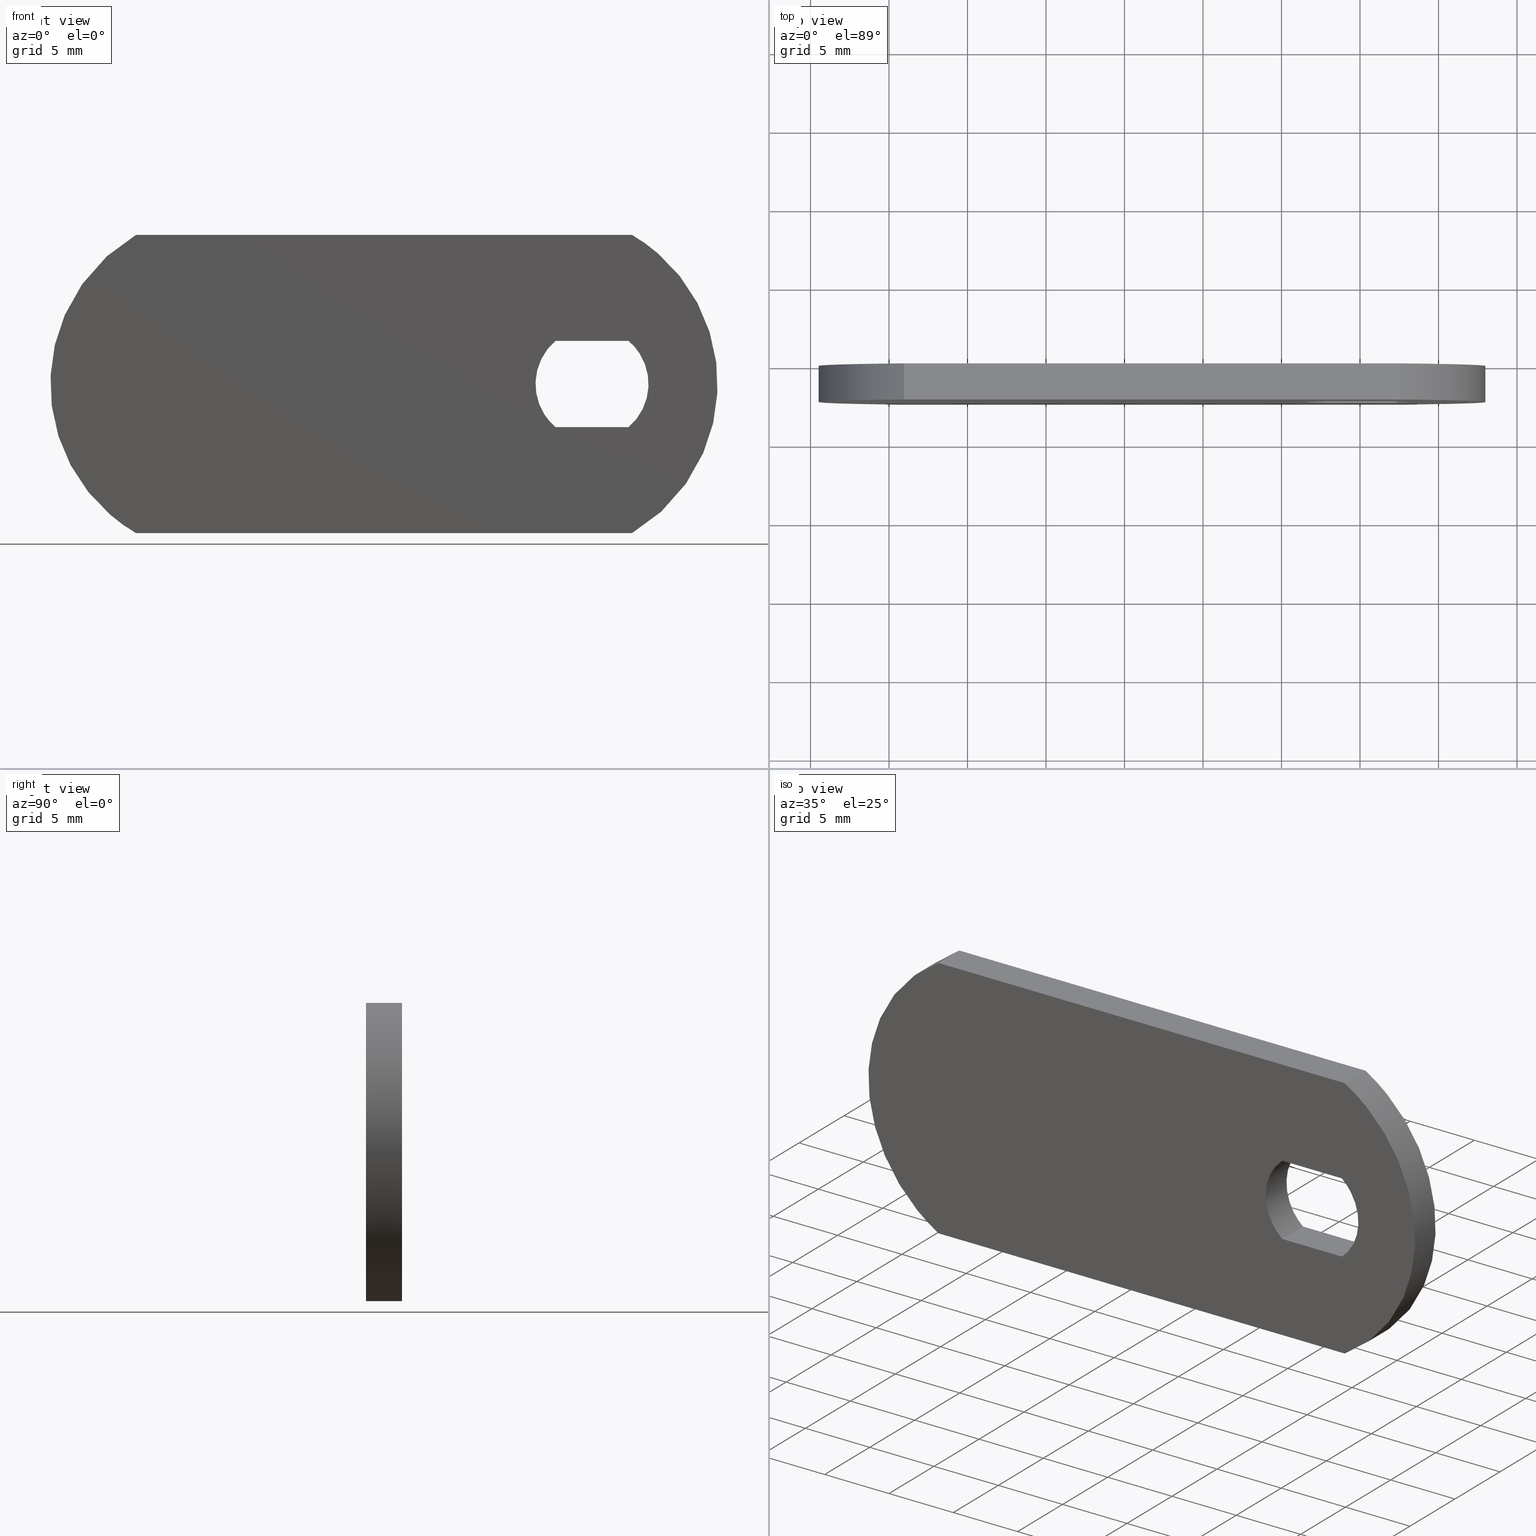
[diagram: canonical four-view strip — front | top / right | iso, engineering-drawing reading convention]
A machine part, canonical four-view strip (front | top / right | iso — engineering-drawing reading convention). The complete STEP part file that produces these views, byte-faithful:
ISO-10303-21;
HEADER;
/****************************************************************
 * Generated by software with PDE/Lib inside                    *
 * PDElib Version 4.4.1-0003, patched  Thursday August 19 11:58 *
 * International Technegroup Inc. (www.iti-oh.com)              *
 ****************************************************************/
FILE_DESCRIPTION((''),'2;1');
FILE_NAME('','2005-07-15T17:38:05',(''),(''),'','CADfix','');
FILE_SCHEMA(('AUTOMOTIVE_DESIGN'));
ENDSEC;
DATA;
#5=APPLICATION_CONTEXT('automotive design');
#6=APPLICATION_PROTOCOL_DEFINITION('Draft International Standard','automotive_design',1998,#5);
#7=PRODUCT_CONTEXT('None',#5,'mechanical');
#8=PRODUCT('cam','','None',(#7));
#9=PRODUCT_RELATED_PRODUCT_CATEGORY('part','description',(#8));
#10=PRODUCT_DEFINITION_FORMATION('None','None',#8);
#11=PRODUCT_DEFINITION_CONTEXT('part definition',#5,'design');
#12=PRODUCT_DEFINITION('None','None',#10,#11);
#18=(NAMED_UNIT(*)PLANE_ANGLE_UNIT()SI_UNIT($,.RADIAN.));
#19=DIMENSIONAL_EXPONENTS(0.0,0.0,0.0,0.0,0.0,0.0,0.0);
#20=PLANE_ANGLE_MEASURE_WITH_UNIT(PLANE_ANGLE_MEASURE(0.017453292500000),#18);
#24=(CONVERSION_BASED_UNIT('DEGREE',#20)NAMED_UNIT(#19)PLANE_ANGLE_UNIT());
#28=(NAMED_UNIT(*)SI_UNIT($,.STERADIAN.)SOLID_ANGLE_UNIT());
#32=(LENGTH_UNIT()NAMED_UNIT(*)SI_UNIT(.MILLI.,.METRE.));
#34=UNCERTAINTY_MEASURE_WITH_UNIT(LENGTH_MEASURE(0.001000000000000),#32,'DISTANCE_ACCURACY_VALUE','');
#36=(GEOMETRIC_REPRESENTATION_CONTEXT(3)GLOBAL_UNCERTAINTY_ASSIGNED_CONTEXT((#34))GLOBAL_UNIT_ASSIGNED_CONTEXT((#24,#28,#32))REPRESENTATION_CONTEXT('None','None'));
#37=AXIS2_PLACEMENT_3D('',#38,#39,#40);
#38=CARTESIAN_POINT('',(0.0,0.0,0.0));
#39=DIRECTION('',(0.0,0.0,1.0));
#40=DIRECTION('',(1.0,0.0,0.0));
#41=ADVANCED_BREP_SHAPE_REPRESENTATION('',(#37,#421),#36);
#42=PRODUCT_DEFINITION_SHAPE('','',#12);
#43=SHAPE_DEFINITION_REPRESENTATION(#42,#41);
#44=CARTESIAN_POINT('',(-36.622874917626753,0.0,10.449049963174311));
#45=CARTESIAN_POINT('',(10.122876057565581,0.0,10.449049963174311));
#46=CARTESIAN_POINT('',(-36.622874917626753,0.0,-10.449050472794029));
#47=CARTESIAN_POINT('',(10.122876057565581,0.0,-10.449050472794029));
#48=B_SPLINE_SURFACE_WITH_KNOTS('',1,1,((#44,#46),(#45,#47)),.UNSPECIFIED.,.F.,.F.,.U.,(2,2),(2,2),(0.0,46.745750975192337),(0.0,20.898100435968342),.UNSPECIFIED.);
#49=CARTESIAN_POINT('',(-29.045268253204700,0.0,9.500000000000000));
#50=VERTEX_POINT('',#49);
#51=CARTESIAN_POINT('',(2.545268253204700,0.0,9.500000000000000));
#52=VERTEX_POINT('',#51);
#53=CARTESIAN_POINT('',(-29.045268253204700,0.0,9.500000000000000));
#54=CARTESIAN_POINT('',(2.545268253204700,0.0,9.500000000000000));
#55=QUASI_UNIFORM_CURVE('',1,(#53,#54),.UNSPECIFIED.,.F.,.U.);
#56=EDGE_CURVE('',#50,#52,#55,.T.);
#57=ORIENTED_EDGE('',*,*,#56,.T.);
#58=CARTESIAN_POINT('',(2.545268253204700,0.0,-9.500000000000000));
#59=VERTEX_POINT('',#58);
#60=CARTESIAN_POINT('',(2.545268253204699,0.0,-9.500000000000005));
#61=CARTESIAN_POINT('',(8.0,0.0,-6.316005180499818));
#62=CARTESIAN_POINT('',(8.0,0.0,0.0));
#63=CARTESIAN_POINT('',(8.0,0.0,6.316005180499816));
#64=CARTESIAN_POINT('',(2.545268253204703,0.0,9.500000000000004));
#72=(BOUNDED_CURVE()B_SPLINE_CURVE(2,(#60,#61,#62,#63,#64),.UNSPECIFIED.,.F.,.U.)B_SPLINE_CURVE_WITH_KNOTS((3,2,3),(0.0,0.500000000000000,1.0),.UNSPECIFIED.)CURVE()GEOMETRIC_REPRESENTATION_ITEM()RATIONAL_B_SPLINE_CURVE((1.0,0.867212573636326,1.0,0.867212573636326,1.0))REPRESENTATION_ITEM(''));
#73=EDGE_CURVE('',#59,#52,#72,.T.);
#74=ORIENTED_EDGE('',*,*,#73,.F.);
#75=CARTESIAN_POINT('',(-29.045268253204700,0.0,-9.500000000000000));
#76=VERTEX_POINT('',#75);
#77=CARTESIAN_POINT('',(2.545268253204700,0.0,-9.500000000000000));
#78=CARTESIAN_POINT('',(-29.045268253204700,0.0,-9.500000000000000));
#79=QUASI_UNIFORM_CURVE('',1,(#77,#78),.UNSPECIFIED.,.F.,.U.);
#80=EDGE_CURVE('',#59,#76,#79,.T.);
#81=ORIENTED_EDGE('',*,*,#80,.T.);
#82=CARTESIAN_POINT('',(-29.045268253204700,0.0,9.500000000000005));
#83=CARTESIAN_POINT('',(-34.500000000000000,0.0,6.316005180499818));
#84=CARTESIAN_POINT('',(-34.500000000000000,0.0,0.0));
#85=CARTESIAN_POINT('',(-34.500000000000000,0.0,-6.316005180499817));
#86=CARTESIAN_POINT('',(-29.045268253204700,0.0,-9.500000000000004));
#94=(BOUNDED_CURVE()B_SPLINE_CURVE(2,(#82,#83,#84,#85,#86),.UNSPECIFIED.,.F.,.U.)B_SPLINE_CURVE_WITH_KNOTS((3,2,3),(0.0,0.500000000000000,1.0),.UNSPECIFIED.)CURVE()GEOMETRIC_REPRESENTATION_ITEM()RATIONAL_B_SPLINE_CURVE((1.0,0.867212573636326,1.0,0.867212573636326,1.0))REPRESENTATION_ITEM(''));
#95=EDGE_CURVE('',#50,#76,#94,.T.);
#96=ORIENTED_EDGE('',*,*,#95,.F.);
#97=EDGE_LOOP('',(#57,#74,#81,#96));
#98=FACE_OUTER_BOUND('',#97,.T.);
#99=CARTESIAN_POINT('',(-2.323252031097790,0.0,2.750000000000000));
#100=VERTEX_POINT('',#99);
#101=CARTESIAN_POINT('',(2.323252031097790,0.0,2.750000000000000));
#102=VERTEX_POINT('',#101);
#103=CARTESIAN_POINT('',(-2.323252031097790,0.0,2.750000000000000));
#104=CARTESIAN_POINT('',(2.323252031097790,0.0,2.750000000000000));
#105=QUASI_UNIFORM_CURVE('',1,(#103,#104),.UNSPECIFIED.,.F.,.U.);
#106=EDGE_CURVE('',#100,#102,#105,.T.);
#107=ORIENTED_EDGE('',*,*,#106,.F.);
#108=CARTESIAN_POINT('',(-2.323252031097790,0.0,-2.750000000000000));
#109=VERTEX_POINT('',#108);
#110=CARTESIAN_POINT('',(-2.323252031097790,0.0,2.749999999999999));
#111=CARTESIAN_POINT('',(-3.600000000000001,0.0,1.671379159290166));
#112=CARTESIAN_POINT('',(-3.600000000000000,0.0,0.0));
#113=CARTESIAN_POINT('',(-3.600000000000001,0.0,-1.671379159290167));
#114=CARTESIAN_POINT('',(-2.323252031097789,0.0,-2.750000000000000));
#122=(BOUNDED_CURVE()B_SPLINE_CURVE(2,(#110,#111,#112,#113,#114),.UNSPECIFIED.,.F.,.U.)B_SPLINE_CURVE_WITH_KNOTS((3,2,3),(0.0,0.500000000000000,1.0),.UNSPECIFIED.)CURVE()GEOMETRIC_REPRESENTATION_ITEM()RATIONAL_B_SPLINE_CURVE((1.0,0.907013722723105,1.0,0.907013722723105,1.0))REPRESENTATION_ITEM(''));
#123=EDGE_CURVE('',#100,#109,#122,.T.);
#124=ORIENTED_EDGE('',*,*,#123,.T.);
#125=CARTESIAN_POINT('',(2.323252031097790,0.0,-2.750000000000000));
#126=VERTEX_POINT('',#125);
#127=CARTESIAN_POINT('',(2.323252031097790,0.0,-2.750000000000000));
#128=CARTESIAN_POINT('',(-2.323252031097790,0.0,-2.750000000000000));
#129=QUASI_UNIFORM_CURVE('',1,(#127,#128),.UNSPECIFIED.,.F.,.U.);
#130=EDGE_CURVE('',#126,#109,#129,.T.);
#131=ORIENTED_EDGE('',*,*,#130,.F.);
#132=CARTESIAN_POINT('',(2.323252031097788,0.0,-2.750000000000000));
#133=CARTESIAN_POINT('',(3.600000000000001,0.0,-1.671379159290167));
#134=CARTESIAN_POINT('',(3.600000000000000,0.0,0.0));
#135=CARTESIAN_POINT('',(3.600000000000001,0.0,1.671379159290165));
#136=CARTESIAN_POINT('',(2.323252031097791,0.0,2.749999999999998));
#144=(BOUNDED_CURVE()B_SPLINE_CURVE(2,(#132,#133,#134,#135,#136),.UNSPECIFIED.,.F.,.U.)B_SPLINE_CURVE_WITH_KNOTS((3,2,3),(0.0,0.500000000000000,1.0),.UNSPECIFIED.)CURVE()GEOMETRIC_REPRESENTATION_ITEM()RATIONAL_B_SPLINE_CURVE((1.0,0.907013722723105,1.0,0.907013722723105,1.0))REPRESENTATION_ITEM(''));
#145=EDGE_CURVE('',#126,#102,#144,.T.);
#146=ORIENTED_EDGE('',*,*,#145,.T.);
#147=EDGE_LOOP('',(#107,#124,#131,#146));
#148=FACE_BOUND('',#147,.T.);
#149=ADVANCED_FACE('',(#98,#148),#48,.T.);
#150=CARTESIAN_POINT('',(-36.622874917626753,-2.300000000000095,10.449049963174311));
#151=CARTESIAN_POINT('',(10.122876057565581,-2.300000000000095,10.449049963174311));
#152=CARTESIAN_POINT('',(-36.622874917626753,-2.300000000000095,-10.449050472794029));
#153=CARTESIAN_POINT('',(10.122876057565581,-2.300000000000095,-10.449050472794029));
#154=B_SPLINE_SURFACE_WITH_KNOTS('',1,1,((#150,#152),(#151,#153)),.UNSPECIFIED.,.F.,.F.,.U.,(2,2),(2,2),(0.0,46.745750975192337),(0.0,20.898100435968342),.UNSPECIFIED.);
#155=CARTESIAN_POINT('',(-29.045268253204700,-2.300000000000080,9.500000000000000));
#156=VERTEX_POINT('',#155);
#157=CARTESIAN_POINT('',(2.545268253204700,-2.300000000000080,9.500000000000000));
#158=VERTEX_POINT('',#157);
#159=CARTESIAN_POINT('',(-29.045268253204700,-2.300000000000080,9.500000000000000));
#160=CARTESIAN_POINT('',(2.545268253204700,-2.300000000000080,9.500000000000000));
#161=QUASI_UNIFORM_CURVE('',1,(#159,#160),.UNSPECIFIED.,.F.,.U.);
#162=EDGE_CURVE('',#156,#158,#161,.T.);
#163=ORIENTED_EDGE('',*,*,#162,.F.);
#164=CARTESIAN_POINT('',(-29.045268253204700,-2.300000000000080,-9.500000000000000));
#165=VERTEX_POINT('',#164);
#166=CARTESIAN_POINT('',(-29.045268253204700,-2.300000000000080,9.500000000000005));
#167=CARTESIAN_POINT('',(-34.500000000000000,-2.300000000000080,6.316005180499818));
#168=CARTESIAN_POINT('',(-34.500000000000000,-2.300000000000080,0.0));
#169=CARTESIAN_POINT('',(-34.500000000000000,-2.300000000000080,-6.316005180499817));
#170=CARTESIAN_POINT('',(-29.045268253204700,-2.300000000000080,-9.500000000000004));
#178=(BOUNDED_CURVE()B_SPLINE_CURVE(2,(#166,#167,#168,#169,#170),.UNSPECIFIED.,.F.,.U.)B_SPLINE_CURVE_WITH_KNOTS((3,2,3),(0.0,0.500000000000000,1.0),.UNSPECIFIED.)CURVE()GEOMETRIC_REPRESENTATION_ITEM()RATIONAL_B_SPLINE_CURVE((1.0,0.867212573636326,1.0,0.867212573636326,1.0))REPRESENTATION_ITEM(''));
#179=EDGE_CURVE('',#156,#165,#178,.T.);
#180=ORIENTED_EDGE('',*,*,#179,.T.);
#181=CARTESIAN_POINT('',(2.545268253204700,-2.300000000000080,-9.500000000000000));
#182=VERTEX_POINT('',#181);
#183=CARTESIAN_POINT('',(2.545268253204700,-2.300000000000080,-9.500000000000000));
#184=CARTESIAN_POINT('',(-29.045268253204700,-2.300000000000080,-9.500000000000000));
#185=QUASI_UNIFORM_CURVE('',1,(#183,#184),.UNSPECIFIED.,.F.,.U.);
#186=EDGE_CURVE('',#182,#165,#185,.T.);
#187=ORIENTED_EDGE('',*,*,#186,.F.);
#188=CARTESIAN_POINT('',(2.545268253204699,-2.300000000000080,-9.500000000000005));
#189=CARTESIAN_POINT('',(8.0,-2.300000000000080,-6.316005180499818));
#190=CARTESIAN_POINT('',(8.0,-2.300000000000080,0.0));
#191=CARTESIAN_POINT('',(8.0,-2.300000000000080,6.316005180499816));
#192=CARTESIAN_POINT('',(2.545268253204703,-2.300000000000080,9.500000000000004));
#200=(BOUNDED_CURVE()B_SPLINE_CURVE(2,(#188,#189,#190,#191,#192),.UNSPECIFIED.,.F.,.U.)B_SPLINE_CURVE_WITH_KNOTS((3,2,3),(0.0,0.500000000000000,1.0),.UNSPECIFIED.)CURVE()GEOMETRIC_REPRESENTATION_ITEM()RATIONAL_B_SPLINE_CURVE((1.0,0.867212573636326,1.0,0.867212573636326,1.0))REPRESENTATION_ITEM(''));
#201=EDGE_CURVE('',#182,#158,#200,.T.);
#202=ORIENTED_EDGE('',*,*,#201,.T.);
#203=EDGE_LOOP('',(#163,#180,#187,#202));
#204=FACE_OUTER_BOUND('',#203,.T.);
#205=CARTESIAN_POINT('',(-2.323252031097790,-2.300000000000080,2.750000000000000));
#206=VERTEX_POINT('',#205);
#207=CARTESIAN_POINT('',(2.323252031097790,-2.300000000000080,2.750000000000000));
#208=VERTEX_POINT('',#207);
#209=CARTESIAN_POINT('',(-2.323252031097790,-2.300000000000080,2.750000000000000));
#210=CARTESIAN_POINT('',(2.323252031097790,-2.300000000000080,2.750000000000000));
#211=QUASI_UNIFORM_CURVE('',1,(#209,#210),.UNSPECIFIED.,.F.,.U.);
#212=EDGE_CURVE('',#206,#208,#211,.T.);
#213=ORIENTED_EDGE('',*,*,#212,.T.);
#214=CARTESIAN_POINT('',(2.323252031097790,-2.300000000000080,-2.750000000000000));
#215=VERTEX_POINT('',#214);
#216=CARTESIAN_POINT('',(2.323252031097788,-2.300000000000080,-2.750000000000000));
#217=CARTESIAN_POINT('',(3.600000000000001,-2.300000000000080,-1.671379159290167));
#218=CARTESIAN_POINT('',(3.600000000000000,-2.300000000000080,0.0));
#219=CARTESIAN_POINT('',(3.600000000000001,-2.300000000000080,1.671379159290165));
#220=CARTESIAN_POINT('',(2.323252031097791,-2.300000000000080,2.749999999999998));
#228=(BOUNDED_CURVE()B_SPLINE_CURVE(2,(#216,#217,#218,#219,#220),.UNSPECIFIED.,.F.,.U.)B_SPLINE_CURVE_WITH_KNOTS((3,2,3),(0.0,0.500000000000000,1.0),.UNSPECIFIED.)CURVE()GEOMETRIC_REPRESENTATION_ITEM()RATIONAL_B_SPLINE_CURVE((1.0,0.907013722723105,1.0,0.907013722723105,1.0))REPRESENTATION_ITEM(''));
#229=EDGE_CURVE('',#215,#208,#228,.T.);
#230=ORIENTED_EDGE('',*,*,#229,.F.);
#231=CARTESIAN_POINT('',(-2.323252031097790,-2.300000000000080,-2.750000000000000));
#232=VERTEX_POINT('',#231);
#233=CARTESIAN_POINT('',(2.323252031097790,-2.300000000000080,-2.750000000000000));
#234=CARTESIAN_POINT('',(-2.323252031097790,-2.300000000000080,-2.750000000000000));
#235=QUASI_UNIFORM_CURVE('',1,(#233,#234),.UNSPECIFIED.,.F.,.U.);
#236=EDGE_CURVE('',#215,#232,#235,.T.);
#237=ORIENTED_EDGE('',*,*,#236,.T.);
#238=CARTESIAN_POINT('',(-2.323252031097790,-2.300000000000080,2.749999999999999));
#239=CARTESIAN_POINT('',(-3.600000000000001,-2.300000000000080,1.671379159290166));
#240=CARTESIAN_POINT('',(-3.600000000000000,-2.300000000000080,0.0));
#241=CARTESIAN_POINT('',(-3.600000000000001,-2.300000000000080,-1.671379159290167));
#242=CARTESIAN_POINT('',(-2.323252031097789,-2.300000000000080,-2.750000000000000));
#250=(BOUNDED_CURVE()B_SPLINE_CURVE(2,(#238,#239,#240,#241,#242),.UNSPECIFIED.,.F.,.U.)B_SPLINE_CURVE_WITH_KNOTS((3,2,3),(0.0,0.500000000000000,1.0),.UNSPECIFIED.)CURVE()GEOMETRIC_REPRESENTATION_ITEM()RATIONAL_B_SPLINE_CURVE((1.0,0.907013722723105,1.0,0.907013722723105,1.0))REPRESENTATION_ITEM(''));
#251=EDGE_CURVE('',#206,#232,#250,.T.);
#252=ORIENTED_EDGE('',*,*,#251,.F.);
#253=EDGE_LOOP('',(#213,#230,#237,#252));
#254=FACE_BOUND('',#253,.T.);
#255=ADVANCED_FACE('',(#204,#254),#154,.F.);
#256=CARTESIAN_POINT('',(2.231610979136753,-2.357500000000082,-2.824873879980537));
#257=CARTESIAN_POINT('',(2.231610979136753,0.058937500000002,-2.824873879980537));
#258=CARTESIAN_POINT('',(5.969573582739396,-2.357500000000083,0.128064459999346));
#259=CARTESIAN_POINT('',(5.969573582739396,0.058937500000002,0.128064459999346));
#260=CARTESIAN_POINT('',(2.108410311315593,-2.357500000000082,2.917979773599893));
#261=CARTESIAN_POINT('',(2.108410311315593,0.058937500000002,2.917979773599893));
#269=(BOUNDED_SURFACE()B_SPLINE_SURFACE(1,2,((#256,#258,#260),(#257,#259,#261)),.UNSPECIFIED.,.F.,.F.,.U.)B_SPLINE_SURFACE_WITH_KNOTS((2,2),(3,3),(0.0,2.416437500000084),(0.0,7.167140233186153),.UNSPECIFIED.)GEOMETRIC_REPRESENTATION_ITEM()RATIONAL_B_SPLINE_SURFACE(((1.0,0.602504377753214,0.998623677677103),(1.0,0.602504377753214,0.998623677677103)))REPRESENTATION_ITEM('')SURFACE());
#270=ORIENTED_EDGE('',*,*,#145,.F.);
#271=CARTESIAN_POINT('',(2.323252031097790,-2.300000000000080,-2.750000000000000));
#272=CARTESIAN_POINT('',(2.323252031097790,0.0,-2.750000000000000));
#273=QUASI_UNIFORM_CURVE('',1,(#271,#272),.UNSPECIFIED.,.F.,.U.);
#274=EDGE_CURVE('',#215,#126,#273,.T.);
#275=ORIENTED_EDGE('',*,*,#274,.F.);
#276=ORIENTED_EDGE('',*,*,#229,.T.);
#277=CARTESIAN_POINT('',(2.323252031097790,-2.300000000000080,2.750000000000000));
#278=CARTESIAN_POINT('',(2.323252031097790,0.0,2.750000000000000));
#279=QUASI_UNIFORM_CURVE('',1,(#277,#278),.UNSPECIFIED.,.F.,.U.);
#280=EDGE_CURVE('',#208,#102,#279,.T.);
#281=ORIENTED_EDGE('',*,*,#280,.T.);
#282=EDGE_LOOP('',(#270,#275,#276,#281));
#283=FACE_OUTER_BOUND('',#282,.T.);
#284=ADVANCED_FACE('',(#283),#269,.F.);
#285=CARTESIAN_POINT('',(-28.794687019345680,-2.357500000000082,9.641902787685234));
#286=CARTESIAN_POINT('',(-28.794687019345680,0.058937500000002,9.641902787685234));
#287=CARTESIAN_POINT('',(-46.928468768441903,-2.357500000000083,-0.315955215323884));
#288=CARTESIAN_POINT('',(-46.928468768441903,0.058937500000002,-0.315955215323884));
#289=CARTESIAN_POINT('',(-28.532748274597470,-2.357500000000082,-9.781178088785431));
#290=CARTESIAN_POINT('',(-28.532748274597470,0.058937500000002,-9.781178088785431));
#298=(BOUNDED_SURFACE()B_SPLINE_SURFACE(1,2,((#285,#287,#289),(#286,#288,#290)),.UNSPECIFIED.,.F.,.F.,.U.)B_SPLINE_SURFACE_WITH_KNOTS((2,2),(3,3),(0.0,2.416437500000084),(0.0,26.437867237212661),.UNSPECIFIED.)GEOMETRIC_REPRESENTATION_ITEM()RATIONAL_B_SPLINE_SURFACE(((1.0,0.469471562785891,1.0),(1.0,0.469471562785891,1.0)))REPRESENTATION_ITEM('')SURFACE());
#299=ORIENTED_EDGE('',*,*,#95,.T.);
#300=CARTESIAN_POINT('',(-29.045268253204700,-2.300000000000080,-9.500000000000000));
#301=CARTESIAN_POINT('',(-29.045268253204700,0.0,-9.500000000000000));
#302=QUASI_UNIFORM_CURVE('',1,(#300,#301),.UNSPECIFIED.,.F.,.U.);
#303=EDGE_CURVE('',#165,#76,#302,.T.);
#304=ORIENTED_EDGE('',*,*,#303,.F.);
#305=ORIENTED_EDGE('',*,*,#179,.F.);
#306=CARTESIAN_POINT('',(-29.045268253204700,-2.300000000000080,9.500000000000000));
#307=CARTESIAN_POINT('',(-29.045268253204700,0.0,9.500000000000000));
#308=QUASI_UNIFORM_CURVE('',1,(#306,#307),.UNSPECIFIED.,.F.,.U.);
#309=EDGE_CURVE('',#156,#50,#308,.T.);
#310=ORIENTED_EDGE('',*,*,#309,.T.);
#311=EDGE_LOOP('',(#299,#304,#305,#310));
#312=FACE_OUTER_BOUND('',#311,.T.);
#313=ADVANCED_FACE('',(#312),#298,.T.);
#314=CARTESIAN_POINT('',(4.123215490471259,-2.414884952360728,-9.500000000000000));
#315=CARTESIAN_POINT('',(-30.623216337795480,-2.414884952360728,-9.500000000000000));
#316=CARTESIAN_POINT('',(4.123215490471259,0.114885055178661,-9.500000000000000));
#317=CARTESIAN_POINT('',(-30.623216337795480,0.114885055178661,-9.500000000000000));
#318=B_SPLINE_SURFACE_WITH_KNOTS('',1,1,((#314,#316),(#315,#317)),.UNSPECIFIED.,.F.,.F.,.U.,(2,2),(2,2),(0.0,34.746431828266743),(0.0,2.529770007539389),.UNSPECIFIED.);
#319=ORIENTED_EDGE('',*,*,#80,.F.);
#320=CARTESIAN_POINT('',(2.545268253204700,-2.300000000000080,-9.500000000000000));
#321=CARTESIAN_POINT('',(2.545268253204700,0.0,-9.500000000000000));
#322=QUASI_UNIFORM_CURVE('',1,(#320,#321),.UNSPECIFIED.,.F.,.U.);
#323=EDGE_CURVE('',#182,#59,#322,.T.);
#324=ORIENTED_EDGE('',*,*,#323,.F.);
#325=ORIENTED_EDGE('',*,*,#186,.T.);
#326=ORIENTED_EDGE('',*,*,#303,.T.);
#327=EDGE_LOOP('',(#319,#324,#325,#326));
#328=FACE_OUTER_BOUND('',#327,.T.);
#329=ADVANCED_FACE('',(#328),#318,.T.);
#330=CARTESIAN_POINT('',(2.202686858099499,-2.357500000000082,-9.691854799601506));
#331=CARTESIAN_POINT('',(2.202686858099499,0.058937500000002,-9.691854799601506));
#332=CARTESIAN_POINT('',(21.224022905627926,-2.357500000000083,0.518993084958154));
#333=CARTESIAN_POINT('',(21.224022905627926,0.058937500000002,0.518993084958154));
#334=CARTESIAN_POINT('',(1.782812632405270,-2.357500000000082,9.905791403179480));
#335=CARTESIAN_POINT('',(1.782812632405270,0.058937500000002,9.905791403179480));
#343=(BOUNDED_SURFACE()B_SPLINE_SURFACE(1,2,((#330,#332,#334),(#331,#333,#335)),.UNSPECIFIED.,.F.,.F.,.U.)B_SPLINE_SURFACE_WITH_KNOTS((2,2),(3,3),(0.0,2.416437500000084),(0.0,26.963234678157001),.UNSPECIFIED.)GEOMETRIC_REPRESENTATION_ITEM()RATIONAL_B_SPLINE_SURFACE(((1.0,0.453990499739547,1.0),(1.0,0.453990499739547,1.0)))REPRESENTATION_ITEM('')SURFACE());
#344=ORIENTED_EDGE('',*,*,#73,.T.);
#345=CARTESIAN_POINT('',(2.545268253204700,-2.300000000000080,9.500000000000000));
#346=CARTESIAN_POINT('',(2.545268253204700,0.0,9.500000000000000));
#347=QUASI_UNIFORM_CURVE('',1,(#345,#346),.UNSPECIFIED.,.F.,.U.);
#348=EDGE_CURVE('',#158,#52,#347,.T.);
#349=ORIENTED_EDGE('',*,*,#348,.F.);
#350=ORIENTED_EDGE('',*,*,#201,.F.);
#351=ORIENTED_EDGE('',*,*,#323,.T.);
#352=EDGE_LOOP('',(#344,#349,#350,#351));
#353=FACE_OUTER_BOUND('',#352,.T.);
#354=ADVANCED_FACE('',(#353),#343,.T.);
#355=CARTESIAN_POINT('',(-30.623216380119331,-2.414884952360729,9.500000000000000));
#356=CARTESIAN_POINT('',(4.123216380119319,-2.414884952360729,9.500000000000000));
#357=CARTESIAN_POINT('',(-30.623216380119331,0.114885055178661,9.500000000000000));
#358=CARTESIAN_POINT('',(4.123216380119319,0.114885055178661,9.500000000000000));
#359=B_SPLINE_SURFACE_WITH_KNOTS('',1,1,((#355,#357),(#356,#358)),.UNSPECIFIED.,.F.,.F.,.U.,(2,2),(2,2),(0.0,34.746432760238648),(0.0,2.529770007539390),.UNSPECIFIED.);
#360=ORIENTED_EDGE('',*,*,#56,.F.);
#361=ORIENTED_EDGE('',*,*,#309,.F.);
#362=ORIENTED_EDGE('',*,*,#162,.T.);
#363=ORIENTED_EDGE('',*,*,#348,.T.);
#364=EDGE_LOOP('',(#360,#361,#362,#363));
#365=FACE_OUTER_BOUND('',#364,.T.);
#366=ADVANCED_FACE('',(#365),#359,.T.);
#367=CARTESIAN_POINT('',(2.555344839780001,-2.414884952360728,-2.750000000000000));
#368=CARTESIAN_POINT('',(-2.555344673608066,-2.414884952360728,-2.750000000000000));
#369=CARTESIAN_POINT('',(2.555344839780001,0.114885055178661,-2.750000000000000));
#370=CARTESIAN_POINT('',(-2.555344673608066,0.114885055178661,-2.750000000000000));
#371=B_SPLINE_SURFACE_WITH_KNOTS('',1,1,((#367,#369),(#368,#370)),.UNSPECIFIED.,.F.,.F.,.U.,(2,2),(2,2),(0.0,5.110689513388067),(0.0,2.529770007539389),.UNSPECIFIED.);
#372=ORIENTED_EDGE('',*,*,#130,.T.);
#373=CARTESIAN_POINT('',(-2.323252031097790,-2.300000000000080,-2.750000000000000));
#374=CARTESIAN_POINT('',(-2.323252031097790,0.0,-2.750000000000000));
#375=QUASI_UNIFORM_CURVE('',1,(#373,#374),.UNSPECIFIED.,.F.,.U.);
#376=EDGE_CURVE('',#232,#109,#375,.T.);
#377=ORIENTED_EDGE('',*,*,#376,.F.);
#378=ORIENTED_EDGE('',*,*,#236,.F.);
#379=ORIENTED_EDGE('',*,*,#274,.T.);
#380=EDGE_LOOP('',(#372,#377,#378,#379));
#381=FACE_OUTER_BOUND('',#380,.T.);
#382=ADVANCED_FACE('',(#381),#371,.F.);
#383=CARTESIAN_POINT('',(-2.250469302804591,-2.357500000000082,2.809873292006992));
#384=CARTESIAN_POINT('',(-2.250469302804591,0.058937500000002,2.809873292006992));
#385=CARTESIAN_POINT('',(-5.846943110431760,-2.357500000000082,-0.070596060625135));
#386=CARTESIAN_POINT('',(-5.846943110431760,0.058937500000002,-0.070596060625135));
#387=CARTESIAN_POINT('',(-2.181970246888101,-2.357500000000082,-2.863390619823826));
#388=CARTESIAN_POINT('',(-2.181970246888101,0.058937500000002,-2.863390619823826));
#396=(BOUNDED_SURFACE()B_SPLINE_SURFACE(1,2,((#383,#385,#387),(#384,#386,#388)),.UNSPECIFIED.,.F.,.F.,.U.)B_SPLINE_SURFACE_WITH_KNOTS((2,2),(3,3),(0.0,2.416437500000085),(0.0,7.023349275348402),.UNSPECIFIED.)GEOMETRIC_REPRESENTATION_ITEM()RATIONAL_B_SPLINE_SURFACE(((1.0,0.615661475325658,1.0),(1.0,0.615661475325658,1.0)))REPRESENTATION_ITEM('')SURFACE());
#397=ORIENTED_EDGE('',*,*,#123,.F.);
#398=CARTESIAN_POINT('',(-2.323252031097790,-2.300000000000080,2.750000000000000));
#399=CARTESIAN_POINT('',(-2.323252031097790,0.0,2.750000000000000));
#400=QUASI_UNIFORM_CURVE('',1,(#398,#399),.UNSPECIFIED.,.F.,.U.);
#401=EDGE_CURVE('',#206,#100,#400,.T.);
#402=ORIENTED_EDGE('',*,*,#401,.F.);
#403=ORIENTED_EDGE('',*,*,#251,.T.);
#404=ORIENTED_EDGE('',*,*,#376,.T.);
#405=EDGE_LOOP('',(#397,#402,#403,#404));
#406=FACE_OUTER_BOUND('',#405,.T.);
#407=ADVANCED_FACE('',(#406),#396,.F.);
#408=CARTESIAN_POINT('',(-2.555344839780001,-2.414884952360728,2.750000000000000));
#409=CARTESIAN_POINT('',(2.555344673608066,-2.414884952360728,2.750000000000000));
#410=CARTESIAN_POINT('',(-2.555344839780001,0.114885055178661,2.750000000000000));
#411=CARTESIAN_POINT('',(2.555344673608066,0.114885055178661,2.750000000000000));
#412=B_SPLINE_SURFACE_WITH_KNOTS('',1,1,((#408,#410),(#409,#411)),.UNSPECIFIED.,.F.,.F.,.U.,(2,2),(2,2),(0.0,5.110689513388067),(0.0,2.529770007539389),.UNSPECIFIED.);
#413=ORIENTED_EDGE('',*,*,#106,.T.);
#414=ORIENTED_EDGE('',*,*,#280,.F.);
#415=ORIENTED_EDGE('',*,*,#212,.F.);
#416=ORIENTED_EDGE('',*,*,#401,.T.);
#417=EDGE_LOOP('',(#413,#414,#415,#416));
#418=FACE_OUTER_BOUND('',#417,.T.);
#419=ADVANCED_FACE('',(#418),#412,.F.);
#420=CLOSED_SHELL('',(#149,#255,#284,#313,#329,#354,#366,#382,#407,#419));
#421=MANIFOLD_SOLID_BREP('cam',#420);
#427=(NAMED_UNIT(*)PLANE_ANGLE_UNIT()SI_UNIT($,.RADIAN.));
#428=DIMENSIONAL_EXPONENTS(0.0,0.0,0.0,0.0,0.0,0.0,0.0);
#429=PLANE_ANGLE_MEASURE_WITH_UNIT(PLANE_ANGLE_MEASURE(0.017453292500000),#427);
#433=(CONVERSION_BASED_UNIT('DEGREE',#429)NAMED_UNIT(#428)PLANE_ANGLE_UNIT());
#437=(NAMED_UNIT(*)SI_UNIT($,.STERADIAN.)SOLID_ANGLE_UNIT());
#441=(LENGTH_UNIT()NAMED_UNIT(*)SI_UNIT(.MILLI.,.METRE.));
#443=UNCERTAINTY_MEASURE_WITH_UNIT(LENGTH_MEASURE(0.001000000000000),#441,'DISTANCE_ACCURACY_VALUE','');
#445=(GEOMETRIC_REPRESENTATION_CONTEXT(3)GLOBAL_UNCERTAINTY_ASSIGNED_CONTEXT((#443))GLOBAL_UNIT_ASSIGNED_CONTEXT((#433,#437,#441))REPRESENTATION_CONTEXT('','3D'));
ENDSEC;
END-ISO-10303-21;
